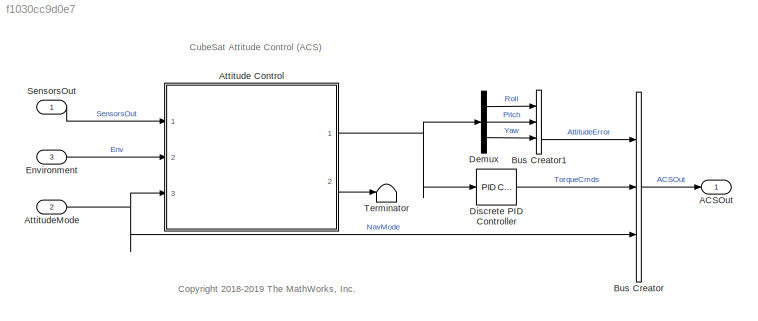
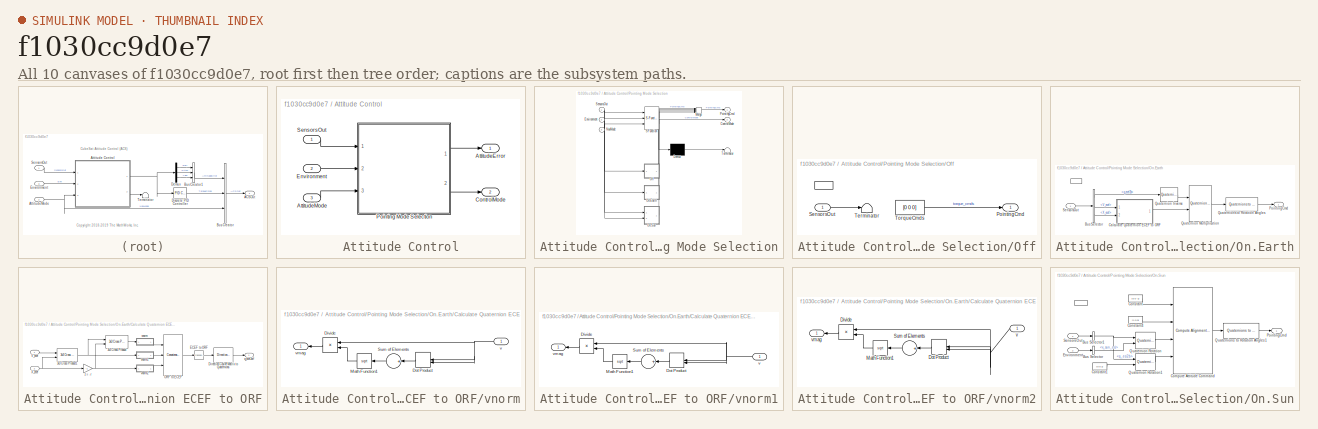
[diagram: thumbnail index - all 10 canvases of the model, root first then tree order]
MODEL slx_f1030cc9d0e7
KIND model
CONFIG AbsTol = auto
CONFIG EnableMultiTasking = on
CONFIG FixedStep = CubeSatTimeStep
CONFIG MaxStep = auto
CONFIG MinStep = auto
CONFIG RelTol = 1e-3
CONFIG SampleTimeConstraint = Unconstrained
CONFIG Solver = FixedStepDiscrete
CONFIG SolverName = FixedStepDiscrete
CONFIG StartTime = 0.0
CONFIG StopTime = 10.0
BLOCK [Outport] ACSOut
  BusOutputAsStruct = on
  IconDisplay = Port number
  OutDataTypeStr = Bus: ACSOutBus
  PortDimensions = 1
  VectorParamsAs1DForOutWhenUnconnected = off
BLOCK [SubSystem] Attitude Control
  Ports = [3, 2]
  RequestExecContextInheritance = off
BLOCK [Outport] Attitude Control/ ControlMode
  IconDisplay = Port number
  Port = 2
  VectorParamsAs1DForOutWhenUnconnected = off
BLOCK [Outport] Attitude Control/AttitudeError
  IconDisplay = Port number
  VectorParamsAs1DForOutWhenUnconnected = off
BLOCK [Inport] Attitude Control/AttitudeMode 
  IconDisplay = Port number
  Port = 3
BLOCK [Inport] Attitude Control/Environment
  IconDisplay = Port number
  Port = 2
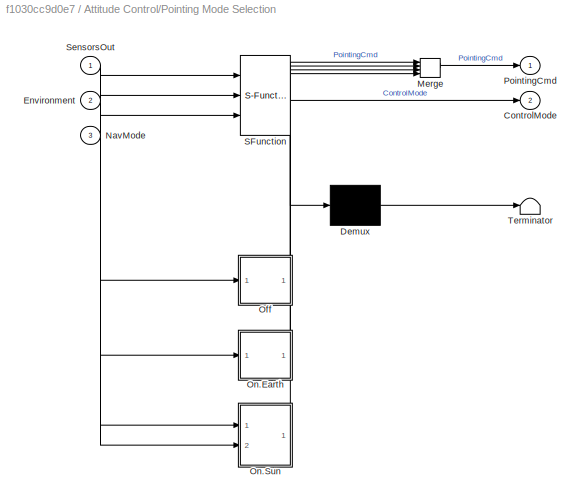
BLOCK [SubSystem] Attitude Control/Pointing Mode Selection
  ErrorFcn = Stateflow.Translate.translate
  PermitHierarchicalResolution = ExplicitOnly
  Ports = [3, 2]
  RequestExecContextInheritance = off
  SFBlockType = Chart
  TreatAsAtomicUnit = on
BLOCK [Demux] Attitude Control/Pointing Mode Selection/ Demux 
  Outputs = 1
  Ports = [1, 1]
BLOCK [Merge] Attitude Control/Pointing Mode Selection/ Merge 
  Inputs = 4
  Ports = [4, 1]
BLOCK [S-Function] Attitude Control/Pointing Mode Selection/ SFunction 
  EnableBusSupport = off
  FunctionName = sf_sfun
  PortCounts = [3 3]
  Ports = [3, 3]
  SFcnIsStateOwnerBlock = off
  SFunctionDeploymentMode = off
  Tag = Stateflow S-Function 1
BLOCK [Terminator] Attitude Control/Pointing Mode Selection/ Terminator 
BLOCK [Outport] Attitude Control/Pointing Mode Selection/ControlMode
  IconDisplay = Port number
  Port = 2
  VectorParamsAs1DForOutWhenUnconnected = off
BLOCK [Inport] Attitude Control/Pointing Mode Selection/Environment
  IconDisplay = Port number
  Port = 2
BLOCK [Inport] Attitude Control/Pointing Mode Selection/NavMode
  IconDisplay = Port number
  Port = 3
BLOCK [SubSystem] Attitude Control/Pointing Mode Selection/Off
  Ports = [1, 1, 0, 0, 0, 0, 0, 1]
  PreDeleteFcn = Stateflow.SLINSF.SimulinkMan.removePreDeleteFcn
  RequestExecContextInheritance = off
  UndoDeleteFcn = Stateflow.SLINSF.SimulinkMan.restorePreDeleteFcn
BLOCK [ActionPort] Attitude Control/Pointing Mode Selection/Off/ 
  CopyFcn = Stateflow.SLINSF.SimulinkMan.removeBlockPreDeleteFcn
  PreDeleteFcn = Stateflow.SLINSF.SimulinkMan.unsafePredeleteFcn
BLOCK [Outport] Attitude Control/Pointing Mode Selection/Off/PointingCmd
  IconDisplay = Port number
  VectorParamsAs1DForOutWhenUnconnected = off
BLOCK [Inport] Attitude Control/Pointing Mode Selection/Off/SensorsOut
  IconDisplay = Port number
  OutDataTypeStr = Bus: StatesOutBus
BLOCK [Terminator] Attitude Control/Pointing Mode Selection/Off/Terminator
BLOCK [Constant] Attitude Control/Pointing Mode Selection/Off/TorqueCmds
  Value = [0 0 0]
BLOCK [SubSystem] Attitude Control/Pointing Mode Selection/On.Earth
  Ports = [1, 1, 0, 0, 0, 0, 0, 1]
  PreDeleteFcn = Stateflow.SLINSF.SimulinkMan.removePreDeleteFcn
  RequestExecContextInheritance = off
  UndoDeleteFcn = Stateflow.SLINSF.SimulinkMan.restorePreDeleteFcn
BLOCK [ActionPort] Attitude Control/Pointing Mode Selection/On.Earth/ 
  CopyFcn = Stateflow.SLINSF.SimulinkMan.removeBlockPreDeleteFcn
  PreDeleteFcn = Stateflow.SLINSF.SimulinkMan.unsafePredeleteFcn
BLOCK [BusSelector] Attitude Control/Pointing Mode Selection/On.Earth/Bus Selector
  OutputAsBus = off
  OutputSignals = q_ecef2b,V_ecef,X_ecef
  Ports = [1, 3]
BLOCK [SubSystem] Attitude Control/Pointing Mode Selection/On.Earth/Calculate Quaternion ECEF to ORF
  Ports = [2, 1]
  RequestExecContextInheritance = off
BLOCK [Reference] Attitude Control/Pointing Mode Selection/On.Earth/Calculate Quaternion ECEF to ORF/3x3 Cross Product  REF=sharedutil/3x3 Cross Product
  Ports = [2, 1]
  SourceBlock = sharedutil/3x3 Cross Product
  SourceProductBaseCode = AE
  SourceProductName = Aerospace Blockset
  SourceType = CrossProduct
BLOCK [Reference] Attitude Control/Pointing Mode Selection/On.Earth/Calculate Quaternion ECEF to ORF/3x3 Cross Product1  REF=sharedutil/3x3 Cross Product
  Ports = [2, 1]
  SourceBlock = sharedutil/3x3 Cross Product
  SourceProductBaseCode = AE
  SourceProductName = Aerospace Blockset
  SourceType = CrossProduct
BLOCK [Reference] Attitude Control/Pointing Mode Selection/On.Earth/Calculate Quaternion ECEF to ORF/Direction Cosine Matrix to Quaternions  REF=sharedtransform/Direction Cosine Matrix 
to Quaternions
  Ports = [1, 1]
  SourceBlock = sharedtransform/Direction Cosine Matrix \nto Quaternions
  SourceProductBaseCode = AE
  SourceProductName = Aerospace Blockset
  SourceType = DCM2Quaternion
BLOCK [Math] Attitude Control/Pointing Mode Selection/On.Earth/Calculate Quaternion ECEF to ORF/ECEF to ORF
  Operator = transpose
  Ports = [1, 1]
BLOCK [Concatenate] Attitude Control/Pointing Mode Selection/On.Earth/Calculate Quaternion ECEF to ORF/ORF to ECEF
  ConcatenateDimension = 2
  Mode = Multidimensional array
  NumInputs = 3
  Ports = [3, 1]
BLOCK [Inport] Attitude Control/Pointing Mode Selection/On.Earth/Calculate Quaternion ECEF to ORF/V_ecef
  IconDisplay = Port number
BLOCK [Inport] Attitude Control/Pointing Mode Selection/On.Earth/Calculate Quaternion ECEF to ORF/X_ecef
  IconDisplay = Port number
  Port = 2
BLOCK [Outport] Attitude Control/Pointing Mode Selection/On.Earth/Calculate Quaternion ECEF to ORF/q_ecef2orf
  IconDisplay = Port number
  VectorParamsAs1DForOutWhenUnconnected = off
BLOCK [SubSystem] Attitude Control/Pointing Mode Selection/On.Earth/Calculate Quaternion ECEF to ORF/vnorm
  Ports = [1, 1]
  RequestExecContextInheritance = off
BLOCK [Product] Attitude Control/Pointing Mode Selection/On.Earth/Calculate Quaternion ECEF to ORF/vnorm/Divide
  InputSameDT = off
  Inputs = */
  OutDataTypeStr = Inherit: Inherit via internal rule
  Ports = [2, 1]
  RndMeth = Floor
  SaturateOnIntegerOverflow = off
BLOCK [DotProduct] Attitude Control/Pointing Mode Selection/On.Earth/Calculate Quaternion ECEF to ORF/vnorm/Dot Product
  OutDataTypeStr = Inherit: Inherit via internal rule
BLOCK [Math] Attitude Control/Pointing Mode Selection/On.Earth/Calculate Quaternion ECEF to ORF/vnorm/Math Function1
  Operator = sqrt
  Ports = [1, 1]
BLOCK [Sum] Attitude Control/Pointing Mode Selection/On.Earth/Calculate Quaternion ECEF to ORF/vnorm/Sum of Elements
  InputSameDT = off
  Inputs = +
  OutDataTypeStr = Inherit: Inherit via internal rule
  Ports = [1, 1]
  SaturateOnIntegerOverflow = off
BLOCK [Inport] Attitude Control/Pointing Mode Selection/On.Earth/Calculate Quaternion ECEF to ORF/vnorm/v
  IconDisplay = Port number
BLOCK [Outport] Attitude Control/Pointing Mode Selection/On.Earth/Calculate Quaternion ECEF to ORF/vnorm/vmag
  IconDisplay = Port number
  VectorParamsAs1DForOutWhenUnconnected = off
BLOCK [SubSystem] Attitude Control/Pointing Mode Selection/On.Earth/Calculate Quaternion ECEF to ORF/vnorm1
  Ports = [1, 1]
  RequestExecContextInheritance = off
BLOCK [Product] Attitude Control/Pointing Mode Selection/On.Earth/Calculate Quaternion ECEF to ORF/vnorm1/Divide
  InputSameDT = off
  Inputs = */
  OutDataTypeStr = Inherit: Inherit via internal rule
  Ports = [2, 1]
  RndMeth = Floor
  SaturateOnIntegerOverflow = off
BLOCK [DotProduct] Attitude Control/Pointing Mode Selection/On.Earth/Calculate Quaternion ECEF to ORF/vnorm1/Dot Product
  OutDataTypeStr = Inherit: Inherit via internal rule
BLOCK [Math] Attitude Control/Pointing Mode Selection/On.Earth/Calculate Quaternion ECEF to ORF/vnorm1/Math Function1
  Operator = sqrt
  Ports = [1, 1]
BLOCK [Sum] Attitude Control/Pointing Mode Selection/On.Earth/Calculate Quaternion ECEF to ORF/vnorm1/Sum of Elements
  InputSameDT = off
  Inputs = +
  OutDataTypeStr = Inherit: Inherit via internal rule
  Ports = [1, 1]
  SaturateOnIntegerOverflow = off
BLOCK [Inport] Attitude Control/Pointing Mode Selection/On.Earth/Calculate Quaternion ECEF to ORF/vnorm1/v
  IconDisplay = Port number
BLOCK [Outport] Attitude Control/Pointing Mode Selection/On.Earth/Calculate Quaternion ECEF to ORF/vnorm1/vmag
  IconDisplay = Port number
  VectorParamsAs1DForOutWhenUnconnected = off
BLOCK [SubSystem] Attitude Control/Pointing Mode Selection/On.Earth/Calculate Quaternion ECEF to ORF/vnorm2
  Ports = [1, 1]
  RequestExecContextInheritance = off
BLOCK [Product] Attitude Control/Pointing Mode Selection/On.Earth/Calculate Quaternion ECEF to ORF/vnorm2/Divide
  InputSameDT = off
  Inputs = */
  OutDataTypeStr = Inherit: Inherit via internal rule
  Ports = [2, 1]
  RndMeth = Floor
  SaturateOnIntegerOverflow = off
BLOCK [DotProduct] Attitude Control/Pointing Mode Selection/On.Earth/Calculate Quaternion ECEF to ORF/vnorm2/Dot Product
  OutDataTypeStr = Inherit: Inherit via internal rule
BLOCK [Math] Attitude Control/Pointing Mode Selection/On.Earth/Calculate Quaternion ECEF to ORF/vnorm2/Math Function1
  Operator = sqrt
  Ports = [1, 1]
BLOCK [Sum] Attitude Control/Pointing Mode Selection/On.Earth/Calculate Quaternion ECEF to ORF/vnorm2/Sum of Elements
  InputSameDT = off
  Inputs = +
  OutDataTypeStr = Inherit: Inherit via internal rule
  Ports = [1, 1]
  SaturateOnIntegerOverflow = off
BLOCK [Inport] Attitude Control/Pointing Mode Selection/On.Earth/Calculate Quaternion ECEF to ORF/vnorm2/v
  IconDisplay = Port number
BLOCK [Outport] Attitude Control/Pointing Mode Selection/On.Earth/Calculate Quaternion ECEF to ORF/vnorm2/vmag
  IconDisplay = Port number
  VectorParamsAs1DForOutWhenUnconnected = off
BLOCK [Gain] Attitude Control/Pointing Mode Selection/On.Earth/Calculate Quaternion ECEF to ORF/z = -r
  Gain = -1
  OutDataTypeStr = Inherit: Inherit via internal rule
  ParamDataTypeStr = Inherit: Inherit via internal rule
  SaturateOnIntegerOverflow = off
BLOCK [Outport] Attitude Control/Pointing Mode Selection/On.Earth/PointingCmd
  IconDisplay = Port number
  VectorParamsAs1DForOutWhenUnconnected = off
BLOCK [Reference] Attitude Control/Pointing Mode Selection/On.Earth/Quaternion Inverse  REF=aerolibutil/Quaternion
Inverse
  Ports = [1, 1]
  SourceBlock = aerolibutil/Quaternion\nInverse
  SourceProductBaseCode = AE
  SourceProductName = Aerospace Blockset
  SourceType = Quaternion Inverse
BLOCK [Reference] Attitude Control/Pointing Mode Selection/On.Earth/Quaternion Multiplication  REF=aerolibutil/Quaternion
Multiplication
  Ports = [2, 1]
  SourceBlock = aerolibutil/Quaternion\nMultiplication
  SourceProductBaseCode = AE
  SourceProductName = Aerospace Blockset
  SourceType = Quaternion Multiplication
BLOCK [Reference] Attitude Control/Pointing Mode Selection/On.Earth/Quaternions to Rotation Angles  REF=sharedtransform/Quaternions to Rotation Angles
  AttributesFormatString = Rotation Order: %<rotationOrder>
  Ports = [1, 1]
  SourceBlock = sharedtransform/Quaternions to Rotation Angles
  SourceProductBaseCode = AE
  SourceProductName = Aerospace Blockset
  SourceType = Quat2Ang
BLOCK [Inport] Attitude Control/Pointing Mode Selection/On.Earth/SensorsOut
  IconDisplay = Port number
  OutDataTypeStr = Bus: StatesOutBus
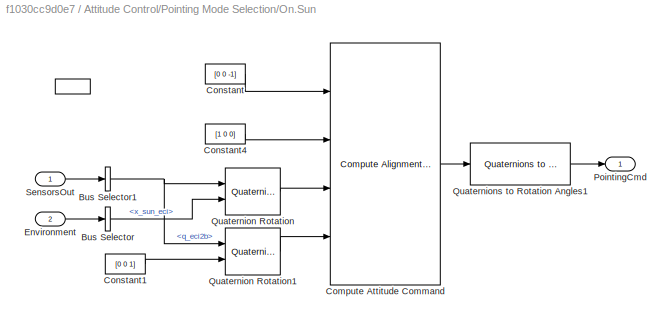
BLOCK [SubSystem] Attitude Control/Pointing Mode Selection/On.Sun
  Ports = [2, 1, 0, 0, 0, 0, 0, 1]
  PreDeleteFcn = Stateflow.SLINSF.SimulinkMan.removePreDeleteFcn
  RequestExecContextInheritance = off
  UndoDeleteFcn = Stateflow.SLINSF.SimulinkMan.restorePreDeleteFcn
BLOCK [ActionPort] Attitude Control/Pointing Mode Selection/On.Sun/ 
  CopyFcn = Stateflow.SLINSF.SimulinkMan.removeBlockPreDeleteFcn
  PreDeleteFcn = Stateflow.SLINSF.SimulinkMan.unsafePredeleteFcn
BLOCK [BusSelector] Attitude Control/Pointing Mode Selection/On.Sun/Bus Selector
  OutputAsBus = off
  OutputSignals = x_sun_eci
  Ports = [1, 1]
BLOCK [BusSelector] Attitude Control/Pointing Mode Selection/On.Sun/Bus Selector1
  OutputAsBus = off
  OutputSignals = q_eci2b
  Ports = [1, 1]
BLOCK [Reference] Attitude Control/Pointing Mode Selection/On.Sun/Compute Attitude Command  REF=asbCubeSatBlockLib/Axes Transformations/Attitude Conversion/Compute Alignment Quaternion
  Ports = [4, 1]
  SourceBlock = asbCubeSatBlockLib/Axes Transformations/Attitude Conversion/Compute Alignment Quaternion
  SourceProductBaseCode = AERO_CUBESAT
  SourceProductName = Aerospace Blockset CubeSat Simulation Library
  SourceType = SubSystem
BLOCK [Constant] Attitude Control/Pointing Mode Selection/On.Sun/Constant
  Value = [0 0 -1]
BLOCK [Constant] Attitude Control/Pointing Mode Selection/On.Sun/Constant1
  Value = [0 0 1]
BLOCK [Constant] Attitude Control/Pointing Mode Selection/On.Sun/Constant4
  Value = [1 0 0]
BLOCK [Inport] Attitude Control/Pointing Mode Selection/On.Sun/Environment
  IconDisplay = Port number
  OutDataTypeStr = Bus: EnvBus
  Port = 2
BLOCK [Outport] Attitude Control/Pointing Mode Selection/On.Sun/PointingCmd
  IconDisplay = Port number
  VectorParamsAs1DForOutWhenUnconnected = off
BLOCK [Reference] Attitude Control/Pointing Mode Selection/On.Sun/Quaternion Rotation  REF=aerolibutil/Quaternion
Rotation
  Ports = [2, 1]
  SourceBlock = aerolibutil/Quaternion\nRotation
  SourceProductBaseCode = AE
  SourceProductName = Aerospace Blockset
  SourceType = Quaternion Rotation
BLOCK [Reference] Attitude Control/Pointing Mode Selection/On.Sun/Quaternion Rotation1  REF=aerolibutil/Quaternion
Rotation
  Ports = [2, 1]
  SourceBlock = aerolibutil/Quaternion\nRotation
  SourceProductBaseCode = AE
  SourceProductName = Aerospace Blockset
  SourceType = Quaternion Rotation
BLOCK [Reference] Attitude Control/Pointing Mode Selection/On.Sun/Quaternions to Rotation Angles1  REF=sharedtransform/Quaternions to Rotation Angles
  AttributesFormatString = Rotation Order: %<rotationOrder>
  Ports = [1, 1]
  SourceBlock = sharedtransform/Quaternions to Rotation Angles
  SourceProductBaseCode = AE
  SourceProductName = Aerospace Blockset
  SourceType = Quat2Ang
BLOCK [Inport] Attitude Control/Pointing Mode Selection/On.Sun/SensorsOut
  IconDisplay = Port number
  OutDataTypeStr = Bus: StatesOutBus
BLOCK [Outport] Attitude Control/Pointing Mode Selection/PointingCmd
  IconDisplay = Port number
  VectorParamsAs1DForOutWhenUnconnected = off
BLOCK [Inport] Attitude Control/Pointing Mode Selection/SensorsOut
  IconDisplay = Port number
BLOCK [Inport] Attitude Control/SensorsOut 
  IconDisplay = Port number
  OutDataTypeStr = Bus: StatesOutBus
BLOCK [Inport] AttitudeMode
  IconDisplay = Port number
  OutDataTypeStr = double
  Port = 2
  PortDimensions = 1
  SamplingMode = Sample based
  SignalType = real
BLOCK [BusCreator] Bus Creator
  DisplayOption = bar
  InheritFromInputs = on
  Inputs = 3
  NonVirtualBus = on
  OutDataTypeStr = Bus: ACSOutBus
  Ports = [3, 1]
BLOCK [BusCreator] Bus Creator1
  DisplayOption = bar
  InheritFromInputs = on
  Inputs = 3
  OutDataTypeStr = Bus: AttitudeErrorBus
  Ports = [3, 1]
BLOCK [Demux] Demux
  DisplayOption = bar
  Outputs = 3
  Ports = [1, 3]
BLOCK [Reference] Discrete PID Controller  REF=simulink/Continuous/PID Controller
  Ports = [1, 1]
  SourceBlock = simulink/Continuous/PID Controller
  SourceProductBaseCode = SL
  SourceProductName = Simulink
  SourceType = PID 1dof
BLOCK [Inport] Environment
  IconDisplay = Port number
  OutDataTypeStr = Bus: EnvBus
  Port = 3
  PortDimensions = 1
  SamplingMode = Sample based
  SignalType = real
BLOCK [Inport] SensorsOut
  IconDisplay = Port number
  OutDataTypeStr = Bus: StatesOutBus
BLOCK [Terminator] Terminator
ANNOTATION (root): CubeSat Attitude Control (ACS)
ANNOTATION (root): <copyright redacted>
LINE Attitude Control/AttitudeMode :1 -> Attitude Control/Pointing Mode Selection:3
LINE Attitude Control/Environment:1 -> Attitude Control/Pointing Mode Selection:2
LINE Attitude Control/Pointing Mode Selection:1 -> Attitude Control/AttitudeError:1
LINE Attitude Control/Pointing Mode Selection:2 -> Attitude Control/ ControlMode:1
LINE Attitude Control/SensorsOut :1 -> Attitude Control/Pointing Mode Selection:1
NET Attitude Control:1 -> Demux:1, Discrete PID Controller:1
LINE Attitude Control:2 -> Terminator:1
NET AttitudeMode:1 -> Attitude Control:3, Bus Creator:3
LINE Bus Creator1:1 -> Bus Creator:1
LINE Bus Creator:1 -> ACSOut:1
LINE Demux:1 -> Bus Creator1:1
LINE Demux:2 -> Bus Creator1:2
LINE Demux:3 -> Bus Creator1:3
LINE Discrete PID Controller:1 -> Bus Creator:2
LINE Environment:1 -> Attitude Control:2
LINE SensorsOut:1 -> Attitude Control:1
note: NET lines group one-source signal fan-out (src -> all destinations, sorted); 1:1 wires keep LINE
CHART Attitude Control/Pointing Mode Selection states=5 transitions=8
  STATE_LABEL 'On'
  STATE_LABEL 'Transition'
  STATE_LABEL 'Earth'
  STATE_LABEL 'Sun'
  STATE_LABEL '[NavMode == 2]\n{ControlMode = 2;}'
  STATE_LABEL '[NavMode == 1]\n{ControlMode = 1;}'
  STATE_LABEL '[NavMode == 1]\n{ControlMode = 2;}'
  STATE_LABEL '[NavMode == 2]\n{ControlMode = 1;}'
  STATE_LABEL 'Transition'
  STATE_LABEL 'Earth'
  STATE_LABEL 'Sun'
  STATE_LABEL 'Off'
